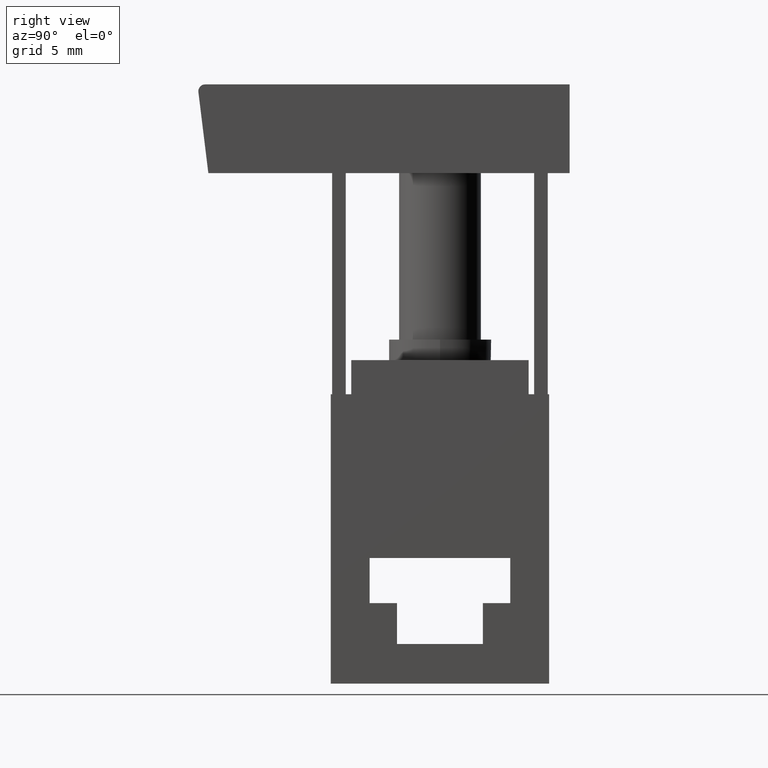
[diagram: clean part render]
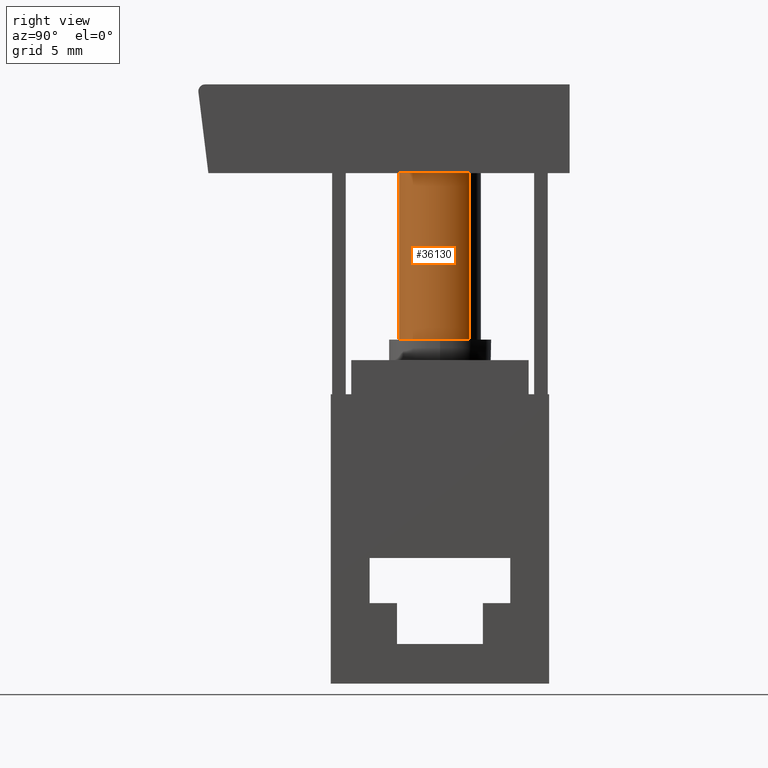
[diagram: same view with one face highlighted and labeled with its STEP entity id]
A machine part, right view. The second image highlights one B-rep face of the part: STEP entity #36130.
In plain terms, the highlighted cylindrical surface (partial cylindrical patch) has radius 3 mm, axis along (0, 0, 1).
Its self-contained STEP definition (entity closure, byte-faithful):
#9060=CARTESIAN_POINT('',(-26.7056108469937,0.,7.105427357601E-15));
#9070=DIRECTION('',(0.,1.,-3.69778549322349E-32));
#9080=DIRECTION('',(-0.707106781186547,2.61472919763157E-32,
0.707106781186548));
#9090=AXIS2_PLACEMENT_3D('',#9060,#9070,#9080);
#9100=CIRCLE('',#9090,2.99999999999999);
#9110=CARTESIAN_POINT('',(-28.8269311905534,0.,2.12132034355964));
#9120=VERTEX_POINT('',#9110);
#9130=CARTESIAN_POINT('',(-24.5842905034341,0.,-2.12132034355963));
#9140=VERTEX_POINT('',#9130);
#9150=EDGE_CURVE('',#9120,#9140,#9100,.T.);
#20040=CARTESIAN_POINT('',(-24.5842905034341,-5.7,-2.12132034355963));
#20050=DIRECTION('',(0.,1.,-3.69778549322349E-32));
#20060=VECTOR('',#20050,1.);
#20070=LINE('',#20040,#20060);
#20080=CARTESIAN_POINT('',(-24.5842905034341,12.2,-2.12132034355963));
#20090=VERTEX_POINT('',#20080);
#20100=EDGE_CURVE('',#9140,#20090,#20070,.T.);
#20120=CARTESIAN_POINT('',(-26.7056108469937,12.2,1.06581410364015E-14))
;
#20130=DIRECTION('',(0.,1.,-3.69778549322349E-32));
#20140=DIRECTION('',(-0.707106781186547,4.35788199605262E-32,
0.707106781186548));
#20150=AXIS2_PLACEMENT_3D('',#20120,#20130,#20140);
#20160=CIRCLE('',#20150,2.99999999999999);
#20170=CARTESIAN_POINT('',(-28.8269311905534,12.2,2.12132034355964));
#20180=VERTEX_POINT('',#20170);
#20210=CARTESIAN_POINT('',(-28.8269311905534,-5.7,2.12132034355964));
#20220=DIRECTION('',(0.,1.,-3.69778549322349E-32));
#20230=VECTOR('',#20220,1.);
#20240=LINE('',#20210,#20230);
#20250=EDGE_CURVE('',#9120,#20180,#20240,.T.);
#21160=EDGE_CURVE('',#20180,#20090,#20160,.T.);
#36020=CARTESIAN_POINT('',(-26.7056108469937,-5.7,7.105427357601E-15));
#36030=DIRECTION('',(0.,1.,-3.69778549322349E-32));
#36040=DIRECTION('',(-0.707106781186547,4.35788199605262E-32,
0.707106781186548));
#36050=AXIS2_PLACEMENT_3D('',#36020,#36030,#36040);
#36060=CYLINDRICAL_SURFACE('',#36050,2.99999999999999);
#36070=ORIENTED_EDGE('',*,*,#21160,.F.);
#36080=ORIENTED_EDGE('',*,*,#20100,.T.);
#36090=ORIENTED_EDGE('',*,*,#9150,.T.);
#36100=ORIENTED_EDGE('',*,*,#20250,.F.);
#36110=EDGE_LOOP('',(#36100,#36090,#36080,#36070));
#36120=FACE_OUTER_BOUND('',#36110,.T.);
#36130=ADVANCED_FACE('',(#36120),#36060,.T.);